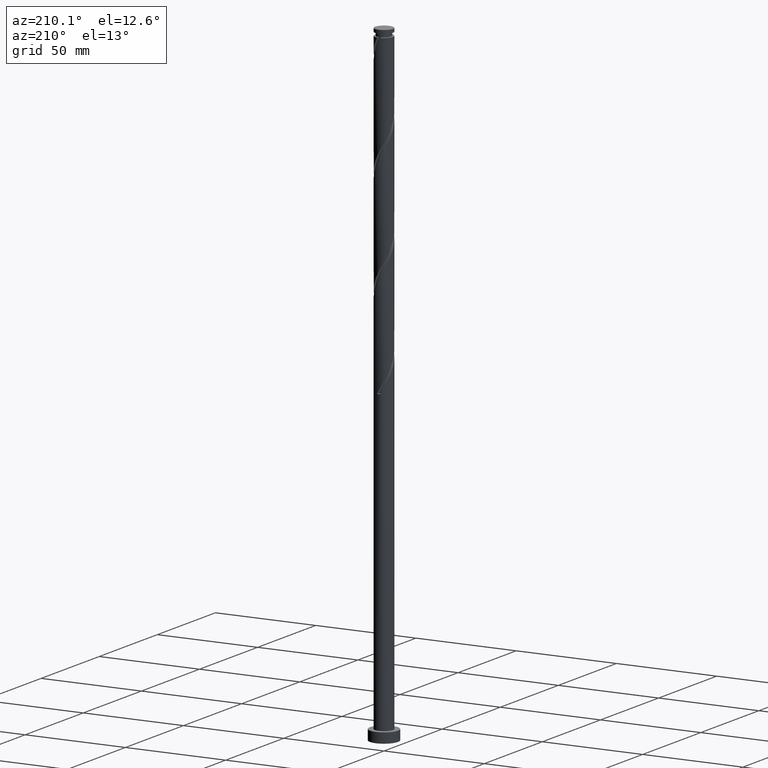
[diagram: clean part render]
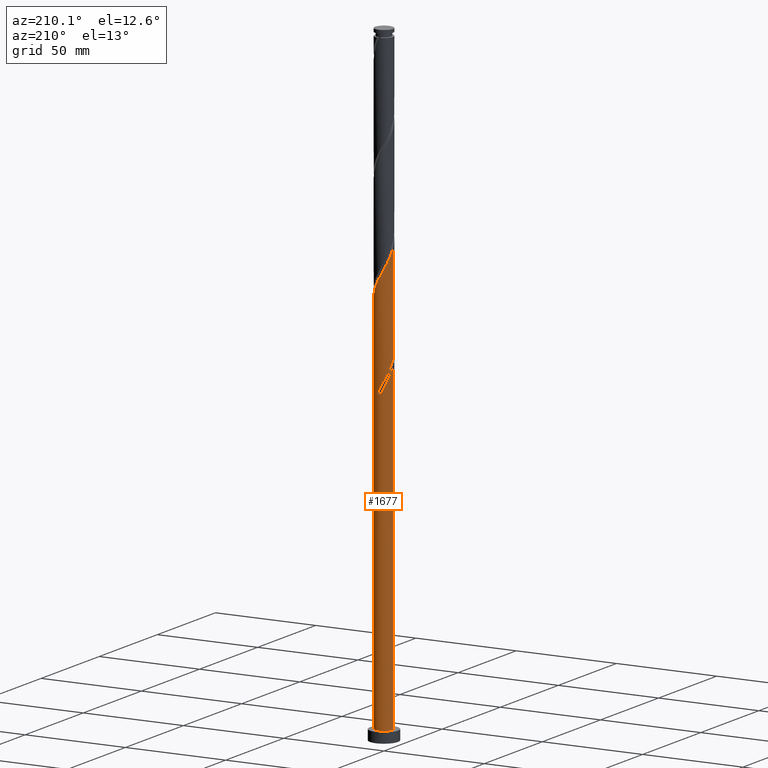
[diagram: same view with one face highlighted and labeled with its STEP entity id]
A machine part, auxiliary view. The second image highlights one B-rep face of the part: STEP entity #1677.
In plain terms, the highlighted cylindrical surface (edge-blend (fillet) strip) has radius 4.5 mm, axis along (-0, -0, -1).
Its self-contained STEP definition (entity closure, byte-faithful):
#11 = CARTESIAN_POINT ( 'NONE',  ( -3.124137324024466533, 3.278237881270730458, 211.1946435053400535 ) ) ;
#22 = CARTESIAN_POINT ( 'NONE',  ( -1.598077888938855162, 4.237124577640576817, 158.6946435053400819 ) ) ;
#32 = CARTESIAN_POINT ( 'NONE',  ( 0.3986010284364700507, 4.510897343732231946, 154.9446435053400535 ) ) ;
#114 = CARTESIAN_POINT ( 'NONE',  ( 0.000000000000000000, 0.000000000000000000, 154.0071435053400251 ) ) ;
#117 = CARTESIAN_POINT ( 'NONE',  ( -3.449711278888141663, 2.889548769671832495, 212.1321435053400535 ) ) ;
#123 = CARTESIAN_POINT ( 'NONE',  ( -4.499999999999999112, 1.761241275540091219E-15, 168.8066605832460709 ) ) ;
#127 = CARTESIAN_POINT ( 'NONE',  ( 4.500000000000008882, 0.4522670168666337864, 192.5458975063975515 ) ) ;
#133 = VERTEX_POINT ( 'NONE', #401 ) ;
#138 = CARTESIAN_POINT ( 'NONE',  ( 3.584734724821537988, 2.720234723816808753, 197.1321435053400251 ) ) ;
#174 = CARTESIAN_POINT ( 'NONE',  ( -3.584734724821531326, 2.720234723816805200, 163.3821435053400251 ) ) ;
#230 = CARTESIAN_POINT ( 'NONE',  ( 0.000000000000000000, 0.000000000000000000, 315.0000000000000000 ) ) ;
#257 = VECTOR ( 'NONE', #1606, 1000.000000000000000 ) ;
#259 = DIRECTION ( 'NONE',  ( -1.000000000000000000, 0.000000000000000000, 0.000000000000000000 ) ) ;
#279 = CARTESIAN_POINT ( 'NONE',  ( -4.486496802515032911, 0.6151618214612597502, 164.3196435053399398 ) ) ;
#282 = CARTESIAN_POINT ( 'NONE',  ( 4.410000000000006359, 0.8954886933959596007, 193.3821435053400251 ) ) ;
#314 = CARTESIAN_POINT ( 'NONE',  ( 2.889548769671832940, 3.449711278888141219, 199.0071435053400819 ) ) ;
#319 = CARTESIAN_POINT ( 'NONE',  ( -4.499999999999998224, 1.761241275540091219E-15, 168.8066605832460709 ) ) ;
#350 = ORIENTED_EDGE ( 'NONE', *, *, #1301, .T. ) ;
#354 = CARTESIAN_POINT ( 'NONE',  ( -4.500000000000000000, 0.000000000000000000, 5.000000000000000000 ) ) ;
#360 = CARTESIAN_POINT ( 'NONE',  ( -4.410000000000000142, 0.8954886933959599338, 167.1321435053400819 ) ) ;
#369 = ORIENTED_EDGE ( 'NONE', *, *, #1157, .F. ) ;
#401 = CARTESIAN_POINT ( 'NONE',  ( 4.500000000000000000, 5.510910596163088569E-16, 5.000000000000000000 ) ) ;
#405 = CARTESIAN_POINT ( 'NONE',  ( -4.361810690077811081, 1.106619855200058566, 163.3821435053399966 ) ) ;
#430 = CARTESIAN_POINT ( 'NONE',  ( -4.500000000000006217, 0.05414803724874456964, 165.3572637392089462 ) ) ;
#433 = CARTESIAN_POINT ( 'NONE',  ( -2.316332123609149640, 3.891231568372342853, 209.3196435053399966 ) ) ;
#457 = CARTESIAN_POINT ( 'NONE',  ( 0.8954886933959609330, 4.410000000000000142, 154.0071435053400251 ) ) ;
#466 = CARTESIAN_POINT ( 'NONE',  ( -4.100167112320052709, 1.854354240982298840, 165.2571435053400819 ) ) ;
#482 = CARTESIAN_POINT ( 'NONE',  ( -4.500000000000005329, -4.328474321242565693E-16, 165.4576264274339792 ) ) ;
#507 = CARTESIAN_POINT ( 'NONE',  ( -3.891231568372337968, 2.316332123609147420, 164.3196435053400819 ) ) ;
#515 = CIRCLE ( 'NONE', #1347, 4.500000000000000000 ) ;
#536 = DIRECTION ( 'NONE',  ( -1.000000000000000000, 0.000000000000000000, 0.000000000000000000 ) ) ;
#541 = CARTESIAN_POINT ( 'NONE',  ( -3.124137324024466533, 3.278237881270730458, 158.6946435053400819 ) ) ;
#545 = LINE ( 'NONE', #1403, #1069 ) ;
#554 = EDGE_CURVE ( 'NONE', #1923, #1203, #586, .T. ) ;
#576 = CARTESIAN_POINT ( 'NONE',  ( -4.498697073123638646, 0.1082803965123951967, 217.7571435053400251 ) ) ;
#586 = LINE ( 'NONE', #737, #257 ) ;
#595 = CARTESIAN_POINT ( 'NONE',  ( -4.486496802515032911, 0.6151618214612597502, 216.8196435053400535 ) ) ;
#605 = CARTESIAN_POINT ( 'NONE',  ( 3.891231568372342853, 2.316332123609148752, 196.1946435053400535 ) ) ;
#606 = CARTESIAN_POINT ( 'NONE',  ( -4.500000000000005329, -4.328474321242565693E-16, 217.9576264274339508 ) ) ;
#637 = DIRECTION ( 'NONE',  ( -0.000000000000000000, -0.000000000000000000, -1.000000000000000000 ) ) ;
#667 = FACE_OUTER_BOUND ( 'NONE', #705, .T. ) ;
#674 = EDGE_CURVE ( 'NONE', #1369, #1923, #1483, .T. ) ;
#705 = EDGE_LOOP ( 'NONE', ( #752, #1673, #1800, #1515, #369, #350, #810, #1414 ) ) ;
#706 = CARTESIAN_POINT ( 'NONE',  ( -3.449711278888141663, 2.889548769671832495, 159.6321435053400535 ) ) ;
#709 = CARTESIAN_POINT ( 'NONE',  ( -4.361810690077811081, 1.106619855200058566, 215.8821435053400251 ) ) ;
#715 = CARTESIAN_POINT ( 'NONE',  ( -2.316332123609149640, 3.891231568372342853, 156.8196435053399682 ) ) ;
#718 = CARTESIAN_POINT ( 'NONE',  ( 1.598077888938858493, 4.237124577640583034, 201.8196435053400251 ) ) ;
#727 = CARTESIAN_POINT ( 'NONE',  ( 2.049468773505896735, 4.006204905696198360, 200.8821435053400535 ) ) ;
#737 = CARTESIAN_POINT ( 'NONE',  ( -4.500000000000000000, 0.000000000000000000, 315.0000000000000000 ) ) ;
#748 =( BOUNDED_CURVE ( )  B_SPLINE_CURVE ( 2, ( #934, #1528, #1298, #715, #1581, #541, #706, #985, #869, #1550, #405, #279, #1872, #430, #1423 ),
 .UNSPECIFIED., .F., .T. ) 
 B_SPLINE_CURVE_WITH_KNOTS ( ( 3, 2, 2, 2, 2, 2, 2, 3 ),
 ( 0.000000000000000000, 0.008928571428571396851, 0.01785714285714290472, 0.02678571428571430157, 0.03571428571428569843, 0.04464285714285709528, 0.05357142857142860315, 0.05453034012992229868 ),
 .UNSPECIFIED. ) 
 CURVE ( )  GEOMETRIC_REPRESENTATION_ITEM ( )  RATIONAL_B_SPLINE_CURVE ( ( 0.9090909090909374823, 0.9033747362666124658, 0.9090909090909374823, 0.9033747362666124658, 0.9090909090909374823, 0.9033747362666124658, 0.9090909090909374823, 0.9033747362666124658, 0.9090909090909374823, 0.9033747362666124658, 0.9090909090909374823, 0.9033747362666124658, 0.9090909090909374823, 0.9084770030214791570, 0.9079949616362074094 ) ) 
 REPRESENTATION_ITEM ( '' )  );
#751 = CARTESIAN_POINT ( 'NONE',  ( -2.500859658072928760, 3.775285233751811020, 160.5696435053400251 ) ) ;
#752 = ORIENTED_EDGE ( 'NONE', *, *, #674, .F. ) ;
#768 = CARTESIAN_POINT ( 'NONE',  ( -4.500000000000000000, 0.000000000000000000, 315.0000000000000000 ) ) ;
#810 = ORIENTED_EDGE ( 'NONE', *, *, #1507, .F. ) ;
#825 = CARTESIAN_POINT ( 'NONE',  ( -0.8954886933959593787, 4.410000000000006359, 154.0071435053400251 ) ) ;
#869 = CARTESIAN_POINT ( 'NONE',  ( -4.006204905696199248, 2.049468773505896735, 161.5071435053400819 ) ) ;
#872 = EDGE_CURVE ( 'NONE', #133, #1086, #1313, .T. ) ;
#873 = CARTESIAN_POINT ( 'NONE',  ( 1.106619855200059899, 4.361810690077811081, 202.7571435053400819 ) ) ;
#908 = CARTESIAN_POINT ( 'NONE',  ( -4.309102656267766562, 1.392376358355449817, 166.1946435053400819 ) ) ;
#915 = CARTESIAN_POINT ( 'NONE',  ( 0.000000000000000000, 0.000000000000000000, 5.000000000000000000 ) ) ;
#929 = CARTESIAN_POINT ( 'NONE',  ( -2.889548769671827610, 3.449711278888136778, 161.5071435053400535 ) ) ;
#934 = CARTESIAN_POINT ( 'NONE',  ( -0.8954886933959593787, 4.410000000000006359, 154.0071435053400251 ) ) ;
#985 = CARTESIAN_POINT ( 'NONE',  ( -3.775285233751815461, 2.500859658072933200, 160.5696435053399966 ) ) ;
#1028 = CARTESIAN_POINT ( 'NONE',  ( 0.6151618214612609714, 4.486496802515032911, 203.6946435053399966 ) ) ;
#1034 = VERTEX_POINT ( 'NONE', #482 ) ;
#1041 = EDGE_CURVE ( 'NONE', #1034, #1086, #1687, .T. ) ;
#1059 = DIRECTION ( 'NONE',  ( 0.000000000000000000, 0.000000000000000000, 1.000000000000000000 ) ) ;
#1069 = VECTOR ( 'NONE', #1844, 1000.000000000000000 ) ;
#1086 = VERTEX_POINT ( 'NONE', #354 ) ;
#1118 = DIRECTION ( 'NONE',  ( -0.000000000000000000, -0.000000000000000000, -1.000000000000000000 ) ) ;
#1153 = CARTESIAN_POINT ( 'NONE',  ( 3.278237881270730458, 3.124137324024466089, 198.0696435053399398 ) ) ;
#1157 = EDGE_CURVE ( 'NONE', #1663, #1034, #748, .T. ) ;
#1166 = CARTESIAN_POINT ( 'NONE',  ( 0.1082803965123961543, 4.498697073123635981, 204.6321435053399966 ) ) ;
#1176 = CARTESIAN_POINT ( 'NONE',  ( -4.500000000000005329, -4.328474321242565693E-16, 217.9576264274339508 ) ) ;
#1198 = CARTESIAN_POINT ( 'NONE',  ( 4.100167112320058926, 1.854354240982299729, 195.2571435053400535 ) ) ;
#1203 = VERTEX_POINT ( 'NONE', #123 ) ;
#1258 = CYLINDRICAL_SURFACE ( 'NONE', #1315, 4.500000000000000000 ) ;
#1280 = AXIS2_PLACEMENT_3D ( 'NONE', #915, #1059, #1509 ) ;
#1298 = CARTESIAN_POINT ( 'NONE',  ( -1.854354240982300395, 4.100167112320058926, 155.8821435053400535 ) ) ;
#1301 = EDGE_CURVE ( 'NONE', #1663, #1388, #515, .T. ) ;
#1302 = CARTESIAN_POINT ( 'NONE',  ( 4.309102656267771891, 1.392376358355450039, 194.3196435053399966 ) ) ;
#1311 = CARTESIAN_POINT ( 'NONE',  ( -4.006204905696199248, 2.049468773505896735, 214.0071435053400251 ) ) ;
#1313 = CIRCLE ( 'NONE', #1280, 4.500000000000000000 ) ;
#1315 = AXIS2_PLACEMENT_3D ( 'NONE', #230, #1118, #536 ) ;
#1323 = CARTESIAN_POINT ( 'NONE',  ( -1.854354240982300395, 4.100167112320058926, 208.3821435053400535 ) ) ;
#1346 = CARTESIAN_POINT ( 'NONE',  ( -0.1082803965123941004, 4.498697073123629764, 155.8821435053400535 ) ) ;
#1347 = AXIS2_PLACEMENT_3D ( 'NONE', #114, #1444, #259 ) ;
#1368 = CARTESIAN_POINT ( 'NONE',  ( -3.278237881270725573, 3.124137324024463425, 162.4446435053400251 ) ) ;
#1369 = VERTEX_POINT ( 'NONE', #1767 ) ;
#1378 = CARTESIAN_POINT ( 'NONE',  ( -0.6151618214612581959, 4.486496802515027582, 156.8196435053399966 ) ) ;
#1388 = VERTEX_POINT ( 'NONE', #457 ) ;
#1403 = CARTESIAN_POINT ( 'NONE',  ( 4.500000000000000000, 5.510910596163088569E-16, 315.0000000000000000 ) ) ;
#1414 = ORIENTED_EDGE ( 'NONE', *, *, #554, .F. ) ;
#1423 = CARTESIAN_POINT ( 'NONE',  ( -4.500000000000005329, -4.328474321242566186E-16, 165.4576264274339792 ) ) ;
#1444 = DIRECTION ( 'NONE',  ( 0.000000000000000000, -0.000000000000000000, -1.000000000000000000 ) ) ;
#1483 =( BOUNDED_CURVE ( )  B_SPLINE_CURVE ( 2, ( #1615, #127, #282, #1302, #1198, #605, #138, #1153, #314, #1753, #727, #718, #873, #1028, #1166, #1762, #1794, #1635, #1323, #433, #1625, #11, #117, #1917, #1311, #1906, #709, #595, #576, #1895, #1176 ),
 .UNSPECIFIED., .F., .T. ) 
 B_SPLINE_CURVE_WITH_KNOTS ( ( 3, 2, 2, 2, 2, 2, 2, 2, 2, 2, 2, 2, 2, 2, 2, 3 ),
 ( 0.1795303401299218615, 0.1875000000000000000, 0.1964285714285713969, 0.2053571428571429047, 0.2142857142857143016, 0.2232142857142856984, 0.2321428571428570953, 0.2410714285714286031, 0.2500000000000000000, 0.2589285714285713969, 0.2678571428571429047, 0.2767857142857143016, 0.2857142857142856984, 0.2946428571428570953, 0.3035714285714286031, 0.3045303401299216395 ),
 .UNSPECIFIED. ) 
 CURVE ( )  GEOMETRIC_REPRESENTATION_ITEM ( )  RATIONAL_B_SPLINE_CURVE ( ( 0.9079949616362078535, 0.9039886423360706802, 0.9090909090909374823, 0.9033747362666124658, 0.9090909090909374823, 0.9033747362666124658, 0.9090909090909374823, 0.9033747362666124658, 0.9090909090909374823, 0.9033747362666124658, 0.9090909090909374823, 0.9033747362666124658, 0.9090909090909374823, 0.9033747362666124658, 0.9090909090909374823, 0.9033747362666124658, 0.9090909090909374823, 0.9033747362666124658, 0.9090909090909374823, 0.9033747362666124658, 0.9090909090909374823, 0.9033747362666124658, 0.9090909090909374823, 0.9033747362666124658, 0.9090909090909374823, 0.9033747362666124658, 0.9090909090909374823, 0.9033747362666124658, 0.9090909090909374823, 0.9084770030214794900, 0.9079949616362079645 ) ) 
 REPRESENTATION_ITEM ( '' )  );
#1491 = CARTESIAN_POINT ( 'NONE',  ( 0.8954886933959609330, 4.410000000000000142, 154.0071435053400251 ) ) ;
#1507 = EDGE_CURVE ( 'NONE', #1203, #1388, #1764, .T. ) ;
#1509 = DIRECTION ( 'NONE',  ( 1.000000000000000000, 0.000000000000000000, 0.000000000000000000 ) ) ;
#1514 = CARTESIAN_POINT ( 'NONE',  ( -1.106619855200056346, 4.361810690077804864, 157.7571435053400251 ) ) ;
#1515 = ORIENTED_EDGE ( 'NONE', *, *, #1041, .F. ) ;
#1528 = CARTESIAN_POINT ( 'NONE',  ( -1.392376358355450927, 4.309102656267771891, 154.9446435053400535 ) ) ;
#1550 = CARTESIAN_POINT ( 'NONE',  ( -4.237124577640583034, 1.598077888938857605, 162.4446435053399966 ) ) ;
#1566 = EDGE_CURVE ( 'NONE', #1369, #133, #545, .T. ) ;
#1581 = CARTESIAN_POINT ( 'NONE',  ( -2.720234723816809641, 3.584734724821537544, 157.7571435053400251 ) ) ;
#1606 = DIRECTION ( 'NONE',  ( -0.000000000000000000, -0.000000000000000000, -1.000000000000000000 ) ) ;
#1615 = CARTESIAN_POINT ( 'NONE',  ( 4.500000000000005329, -1.865721690190761372E-16, 191.7076264274339792 ) ) ;
#1625 = CARTESIAN_POINT ( 'NONE',  ( -2.720234723816809641, 3.584734724821537544, 210.2571435053399966 ) ) ;
#1635 = CARTESIAN_POINT ( 'NONE',  ( -1.392376358355450927, 4.309102656267771891, 207.4446435053399966 ) ) ;
#1663 = VERTEX_POINT ( 'NONE', #825 ) ;
#1673 = ORIENTED_EDGE ( 'NONE', *, *, #1566, .T. ) ;
#1677 = ADVANCED_FACE ( 'NONE', ( #667 ), #1258, .T. ) ;
#1687 = LINE ( 'NONE', #768, #1875 ) ;
#1691 = CARTESIAN_POINT ( 'NONE',  ( -2.049468773505891406, 4.006204905696194807, 159.6321435053400819 ) ) ;
#1753 = CARTESIAN_POINT ( 'NONE',  ( 2.500859658072934089, 3.775285233751815017, 199.9446435053399398 ) ) ;
#1762 = CARTESIAN_POINT ( 'NONE',  ( -0.3986010284364690515, 4.510897343732239051, 205.5696435053399966 ) ) ;
#1764 =( BOUNDED_CURVE ( )  B_SPLINE_CURVE ( 2, ( #319, #1808, #360, #908, #466, #507, #174, #1368, #929, #751, #1691, #22, #1514, #1378, #1346, #32, #1491 ),
 .UNSPECIFIED., .F., .T. ) 
 B_SPLINE_CURVE_WITH_KNOTS ( ( 3, 2, 2, 2, 2, 2, 2, 2, 3 ),
 ( 0.9295303401299221946, 0.9375000000000000000, 0.9464285714285713969, 0.9553571428571429047, 0.9642857142857143016, 0.9732142857142856984, 0.9821428571428570953, 0.9910714285714286031, 1.000000000000000000 ),
 .UNSPECIFIED. ) 
 CURVE ( )  GEOMETRIC_REPRESENTATION_ITEM ( )  RATIONAL_B_SPLINE_CURVE ( ( 0.9079949616362010811, 0.9039886423360644629, 0.9090909090909310430, 0.9033747362666060265, 0.9090909090909310430, 0.9033747362666060265, 0.9090909090909310430, 0.9033747362666060265, 0.9090909090909310430, 0.9033747362666060265, 0.9090909090909310430, 0.9033747362666060265, 0.9090909090909310430, 0.9033747362666060265, 0.9090909090909310430, 0.9033747362666060265, 0.9090909090909310430 ) ) 
 REPRESENTATION_ITEM ( '' )  );
#1767 = CARTESIAN_POINT ( 'NONE',  ( 4.500000000000005329, -1.865721690190761372E-16, 191.7076264274339792 ) ) ;
#1794 = CARTESIAN_POINT ( 'NONE',  ( -0.8954886933959593787, 4.410000000000006359, 206.5071435053399966 ) ) ;
#1800 = ORIENTED_EDGE ( 'NONE', *, *, #872, .T. ) ;
#1808 = CARTESIAN_POINT ( 'NONE',  ( -4.499999999999998224, 0.4522670168666535484, 167.9683895042824417 ) ) ;
#1844 = DIRECTION ( 'NONE',  ( -0.000000000000000000, -0.000000000000000000, -1.000000000000000000 ) ) ;
#1872 = CARTESIAN_POINT ( 'NONE',  ( -4.498697073123638646, 0.1082803965123951967, 165.2571435053400535 ) ) ;
#1875 = VECTOR ( 'NONE', #637, 1000.000000000000000 ) ;
#1895 = CARTESIAN_POINT ( 'NONE',  ( -4.500000000000006217, 0.05414803724878180374, 217.8572637392088609 ) ) ;
#1906 = CARTESIAN_POINT ( 'NONE',  ( -4.237124577640583034, 1.598077888938857605, 214.9446435053400535 ) ) ;
#1917 = CARTESIAN_POINT ( 'NONE',  ( -3.775285233751815461, 2.500859658072933200, 213.0696435053399966 ) ) ;
#1923 = VERTEX_POINT ( 'NONE', #606 ) ;